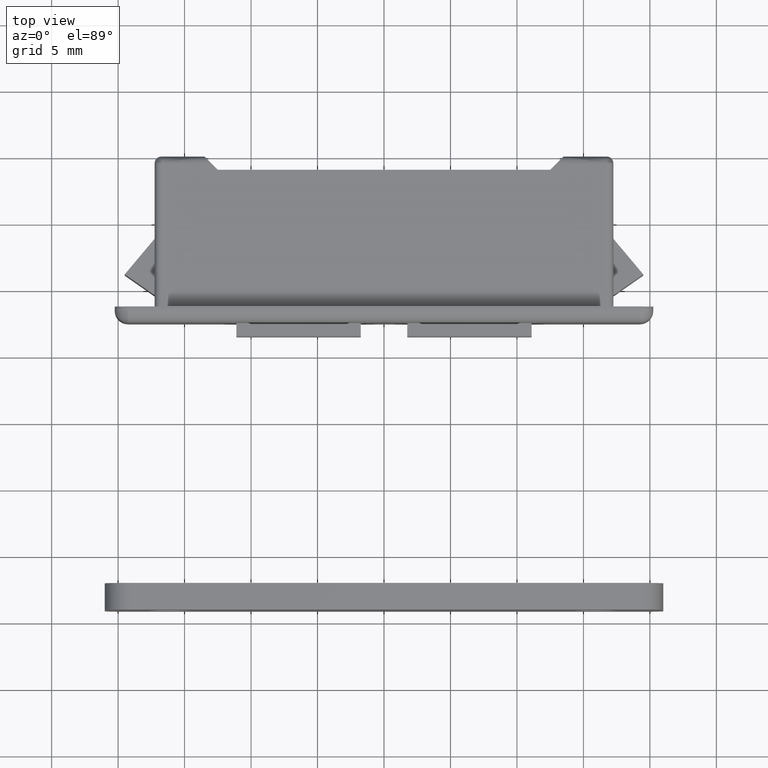
[diagram: clean part render]
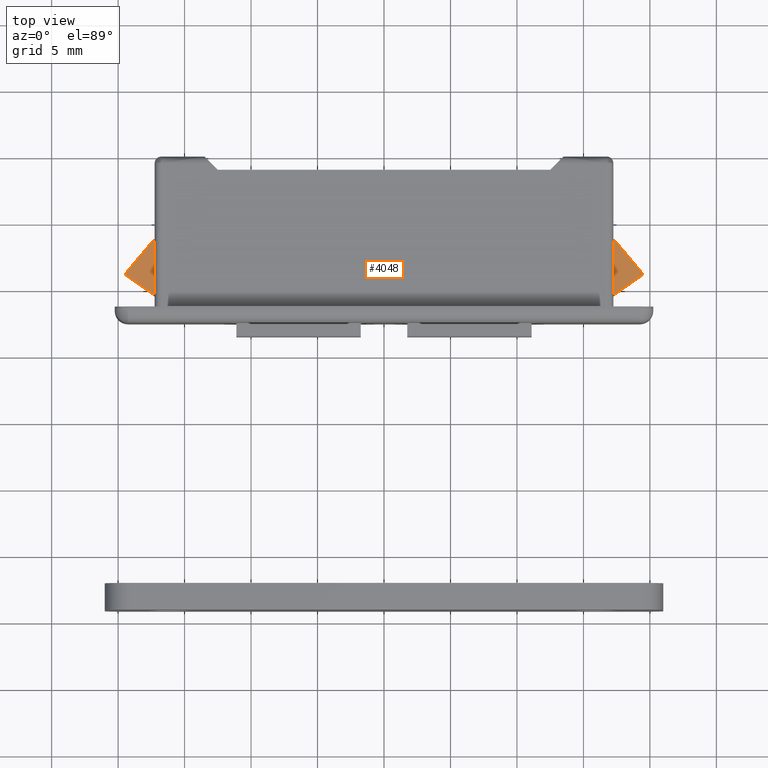
[diagram: same view with one face highlighted and labeled with its STEP entity id]
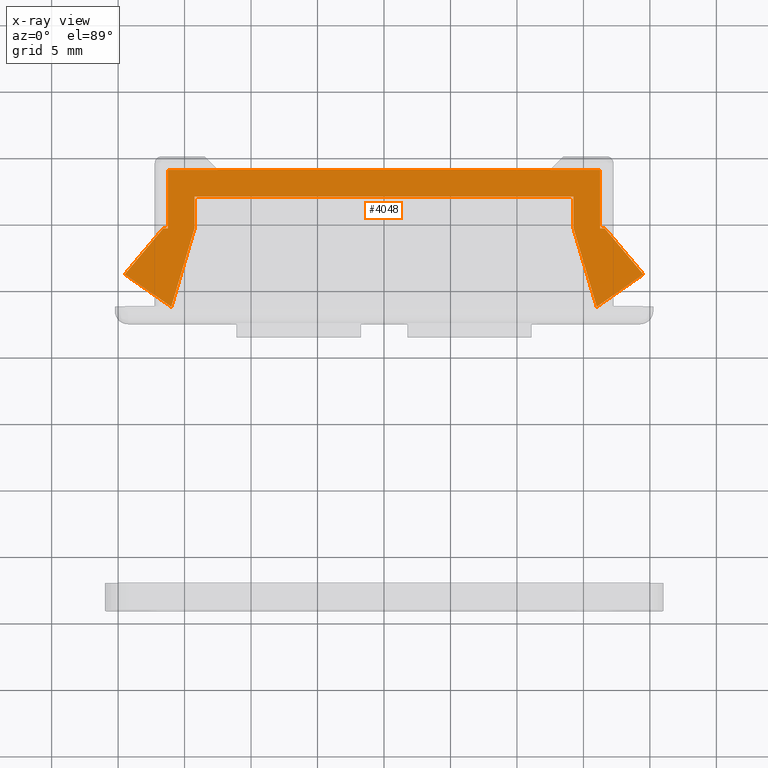
[diagram: x-ray of the same camera — body ghosted, the highlighted face saturated]
A machine part, top view. The second image highlights one B-rep face of the part: STEP entity #4048.
The next image is the same camera in x-ray: the body ghosted, the highlighted face saturated — about 0% of this face is hidden behind the body in this view.
In plain terms, the highlighted face is a freeform B-spline surface patch.
Its self-contained STEP definition (entity closure, byte-faithful):
#3943=CARTESIAN_POINT('',(-21.448096225478309,-0.485514870113406,3.0));
#3944=CARTESIAN_POINT('',(21.448094830726578,-0.485514870113406,3.0));
#3945=CARTESIAN_POINT('',(-21.448096225478309,-11.814488406154190,3.0));
#3946=CARTESIAN_POINT('',(21.448094830726578,-11.814488406154190,3.0));
#3947=B_SPLINE_SURFACE_WITH_KNOTS('',1,1,((#3943,#3945),(#3944,#3946)),.UNSPECIFIED.,.F.,.F.,.U.,(2,2),(2,2),(0.0,42.896191056204891),(0.0,11.328973536040779),.UNSPECIFIED.);
#3948=CARTESIAN_POINT('',(-16.250000000000000,-5.390003000000000,3.0));
#3949=VERTEX_POINT('',#3948);
#3950=CARTESIAN_POINT('',(-16.597331072363851,-5.390003000000000,3.0));
#3951=VERTEX_POINT('',#3950);
#3952=CARTESIAN_POINT('',(-16.250000000000000,-5.390003000000000,3.0));
#3953=CARTESIAN_POINT('',(-16.597331072363851,-5.390003000000000,3.0));
#3954=QUASI_UNIFORM_CURVE('',1,(#3952,#3953),.UNSPECIFIED.,.F.,.U.);
#3955=EDGE_CURVE('',#3949,#3951,#3954,.T.);
#3956=ORIENTED_EDGE('',*,*,#3955,.T.);
#3957=CARTESIAN_POINT('',(-19.500042555240150,-8.849177195317861,3.0));
#3958=VERTEX_POINT('',#3957);
#3959=CARTESIAN_POINT('',(-16.597331072363851,-5.390003000000000,3.0));
#3960=CARTESIAN_POINT('',(-19.500042555240150,-8.849177195317861,3.0));
#3961=QUASI_UNIFORM_CURVE('',1,(#3959,#3960),.UNSPECIFIED.,.F.,.U.);
#3962=EDGE_CURVE('',#3951,#3958,#3961,.T.);
#3963=ORIENTED_EDGE('',*,*,#3962,.T.);
#3964=CARTESIAN_POINT('',(-15.999966432461450,-11.300002999999981,3.0));
#3965=VERTEX_POINT('',#3964);
#3966=CARTESIAN_POINT('',(-19.500042555240150,-8.849177195317861,3.0));
#3967=CARTESIAN_POINT('',(-15.999966432461450,-11.300002999999981,3.0));
#3968=QUASI_UNIFORM_CURVE('',1,(#3966,#3967),.UNSPECIFIED.,.F.,.U.);
#3969=EDGE_CURVE('',#3958,#3965,#3968,.T.);
#3970=ORIENTED_EDGE('',*,*,#3969,.T.);
#3971=CARTESIAN_POINT('',(-14.250000000000000,-5.390003000000000,3.0));
#3972=VERTEX_POINT('',#3971);
#3973=CARTESIAN_POINT('',(-15.999966432461450,-11.300002999999981,3.0));
#3974=CARTESIAN_POINT('',(-14.250000000000000,-5.390003000000000,3.0));
#3975=QUASI_UNIFORM_CURVE('',1,(#3973,#3974),.UNSPECIFIED.,.F.,.U.);
#3976=EDGE_CURVE('',#3965,#3972,#3975,.T.);
#3977=ORIENTED_EDGE('',*,*,#3976,.T.);
#3978=CARTESIAN_POINT('',(-14.250000000000000,-3.0,3.0));
#3979=VERTEX_POINT('',#3978);
#3980=CARTESIAN_POINT('',(-14.250000000000000,-5.390003000000000,3.0));
#3981=CARTESIAN_POINT('',(-14.250000000000000,-3.0,3.0));
#3982=QUASI_UNIFORM_CURVE('',1,(#3980,#3981),.UNSPECIFIED.,.F.,.U.);
#3983=EDGE_CURVE('',#3972,#3979,#3982,.T.);
#3984=ORIENTED_EDGE('',*,*,#3983,.T.);
#3985=CARTESIAN_POINT('',(14.250000000000000,-3.0,3.0));
#3986=VERTEX_POINT('',#3985);
#3987=CARTESIAN_POINT('',(-14.250000000000000,-3.0,3.0));
#3988=CARTESIAN_POINT('',(14.250000000000000,-3.0,3.0));
#3989=QUASI_UNIFORM_CURVE('',1,(#3987,#3988),.UNSPECIFIED.,.F.,.U.);
#3990=EDGE_CURVE('',#3979,#3986,#3989,.T.);
#3991=ORIENTED_EDGE('',*,*,#3990,.T.);
#3992=CARTESIAN_POINT('',(14.250000000000000,-5.390003000000000,3.0));
#3993=VERTEX_POINT('',#3992);
#3994=CARTESIAN_POINT('',(14.250000000000000,-3.0,3.0));
#3995=CARTESIAN_POINT('',(14.250000000000000,-5.390003000000000,3.0));
#3996=QUASI_UNIFORM_CURVE('',1,(#3994,#3995),.UNSPECIFIED.,.F.,.U.);
#3997=EDGE_CURVE('',#3986,#3993,#3996,.T.);
#3998=ORIENTED_EDGE('',*,*,#3997,.T.);
#3999=CARTESIAN_POINT('',(15.999966432461450,-11.300002999999959,3.0));
#4000=VERTEX_POINT('',#3999);
#4001=CARTESIAN_POINT('',(14.250000000000000,-5.390003000000000,3.0));
#4002=CARTESIAN_POINT('',(15.999966432461450,-11.300002999999959,3.0));
#4003=QUASI_UNIFORM_CURVE('',1,(#4001,#4002),.UNSPECIFIED.,.F.,.U.);
#4004=EDGE_CURVE('',#3993,#4000,#4003,.T.);
#4005=ORIENTED_EDGE('',*,*,#4004,.T.);
#4006=CARTESIAN_POINT('',(19.500042555240150,-8.849177195317861,3.0));
#4007=VERTEX_POINT('',#4006);
#4008=CARTESIAN_POINT('',(15.999966432461450,-11.300002999999959,3.0));
#4009=CARTESIAN_POINT('',(19.500042555240150,-8.849177195317861,3.0));
#4010=QUASI_UNIFORM_CURVE('',1,(#4008,#4009),.UNSPECIFIED.,.F.,.U.);
#4011=EDGE_CURVE('',#4000,#4007,#4010,.T.);
#4012=ORIENTED_EDGE('',*,*,#4011,.T.);
#4013=CARTESIAN_POINT('',(16.597331072363851,-5.390003000000000,3.0));
#4014=VERTEX_POINT('',#4013);
#4015=CARTESIAN_POINT('',(19.500042555240150,-8.849177195317861,3.0));
#4016=CARTESIAN_POINT('',(16.597331072363851,-5.390003000000000,3.0));
#4017=QUASI_UNIFORM_CURVE('',1,(#4015,#4016),.UNSPECIFIED.,.F.,.U.);
#4018=EDGE_CURVE('',#4007,#4014,#4017,.T.);
#4019=ORIENTED_EDGE('',*,*,#4018,.T.);
#4020=CARTESIAN_POINT('',(16.250000000000000,-5.390003000000000,3.0));
#4021=VERTEX_POINT('',#4020);
#4022=CARTESIAN_POINT('',(16.597331072363851,-5.390003000000000,3.0));
#4023=CARTESIAN_POINT('',(16.250000000000000,-5.390003000000000,3.0));
#4024=QUASI_UNIFORM_CURVE('',1,(#4022,#4023),.UNSPECIFIED.,.F.,.U.);
#4025=EDGE_CURVE('',#4014,#4021,#4024,.T.);
#4026=ORIENTED_EDGE('',*,*,#4025,.T.);
#4027=CARTESIAN_POINT('',(16.250000000000000,-1.0,3.0));
#4028=VERTEX_POINT('',#4027);
#4029=CARTESIAN_POINT('',(16.250000000000000,-5.390003000000000,3.0));
#4030=CARTESIAN_POINT('',(16.250000000000000,-1.0,3.0));
#4031=QUASI_UNIFORM_CURVE('',1,(#4029,#4030),.UNSPECIFIED.,.F.,.U.);
#4032=EDGE_CURVE('',#4021,#4028,#4031,.T.);
#4033=ORIENTED_EDGE('',*,*,#4032,.T.);
#4034=CARTESIAN_POINT('',(-16.250004000000001,-1.0,3.0));
#4035=VERTEX_POINT('',#4034);
#4036=CARTESIAN_POINT('',(16.250000000000000,-1.0,3.0));
#4037=CARTESIAN_POINT('',(-16.250004000000001,-1.0,3.0));
#4038=QUASI_UNIFORM_CURVE('',1,(#4036,#4037),.UNSPECIFIED.,.F.,.U.);
#4039=EDGE_CURVE('',#4028,#4035,#4038,.T.);
#4040=ORIENTED_EDGE('',*,*,#4039,.T.);
#4041=CARTESIAN_POINT('',(-16.250004000000001,-1.0,3.0));
#4042=CARTESIAN_POINT('',(-16.250000000000000,-5.390003000000000,3.0));
#4043=QUASI_UNIFORM_CURVE('',1,(#4041,#4042),.UNSPECIFIED.,.F.,.U.);
#4044=EDGE_CURVE('',#4035,#3949,#4043,.T.);
#4045=ORIENTED_EDGE('',*,*,#4044,.T.);
#4046=EDGE_LOOP('',(#3956,#3963,#3970,#3977,#3984,#3991,#3998,#4005,#4012,#4019,#4026,#4033,#4040,#4045));
#4047=FACE_OUTER_BOUND('',#4046,.T.);
#4048=ADVANCED_FACE('',(#4047),#3947,.F.);